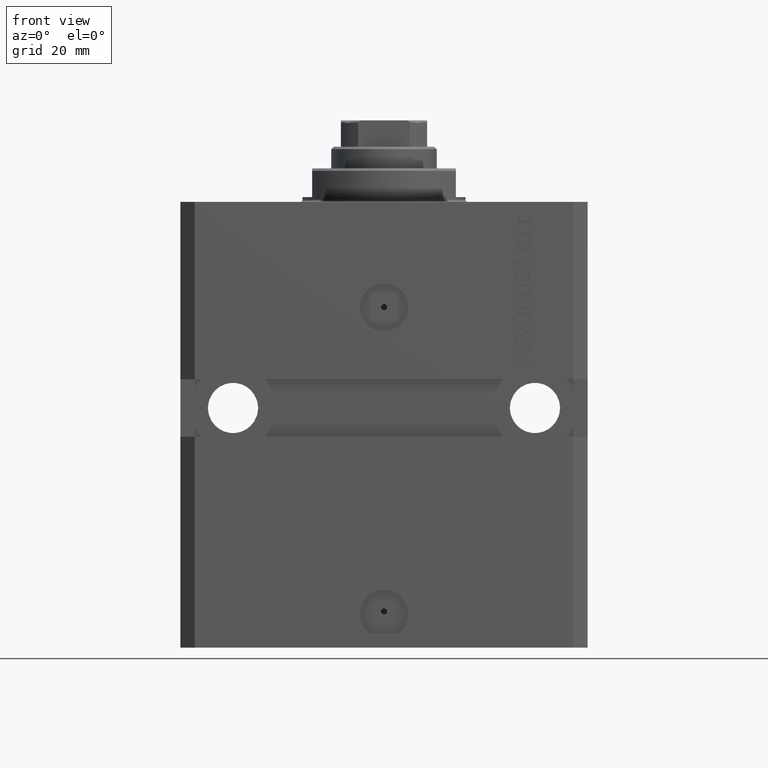
[diagram: clean part render]
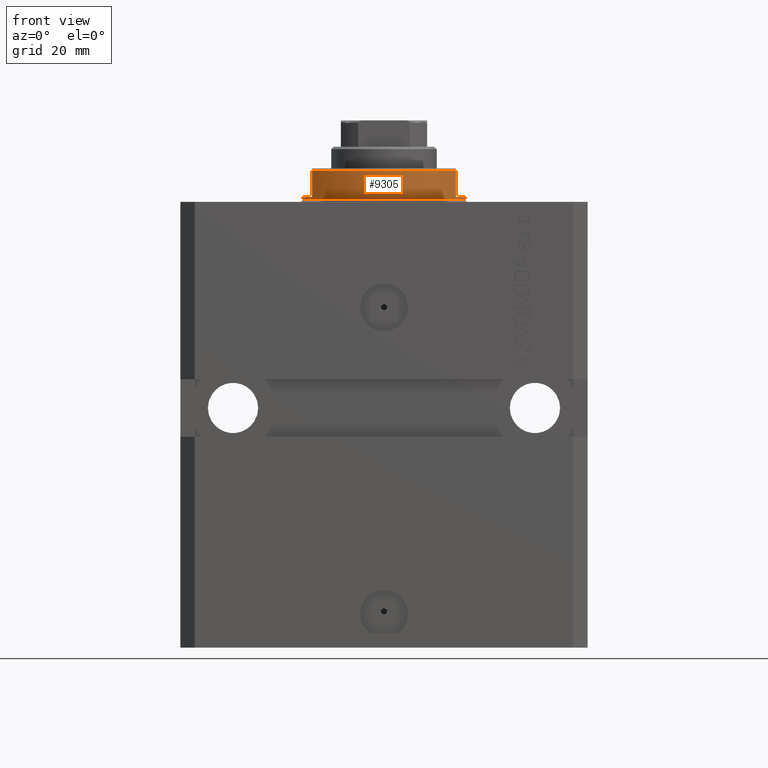
[diagram: same view with one face highlighted and labeled with its STEP entity id]
A machine part, front view. The second image highlights one B-rep face of the part: STEP entity #9305.
In plain terms, the highlighted cylindrical surface (partial cylindrical patch) has radius 17 mm, axis along (0, 0, -1).
Its self-contained STEP definition (entity closure, byte-faithful):
#736 = ORIENTED_EDGE ( 'NONE', *, *, #13265, .F. ) ;
#1543 = AXIS2_PLACEMENT_3D ( 'NONE', #9199, #40008, #32775 ) ;
#2666 = AXIS2_PLACEMENT_3D ( 'NONE', #10655, #24474, #24015 ) ;
#3872 = LINE ( 'NONE', #17471, #11610 ) ;
#4206 = CARTESIAN_POINT ( 'NONE',  ( 17.00000000000000000, 0.000000000000000000, -1.000000000000000000 ) ) ;
#4638 = DIRECTION ( 'NONE',  ( 0.000000000000000000, 0.000000000000000000, -1.000000000000000000 ) ) ;
#4930 = VERTEX_POINT ( 'NONE', #26469 ) ;
#5018 = EDGE_CURVE ( 'NONE', #11907, #6607, #15577, .T. ) ;
#6607 = VERTEX_POINT ( 'NONE', #19199 ) ;
#6978 = AXIS2_PLACEMENT_3D ( 'NONE', #20652, #14093, #34490 ) ;
#8997 = ORIENTED_EDGE ( 'NONE', *, *, #16278, .T. ) ;
#9199 = CARTESIAN_POINT ( 'NONE',  ( 0.000000000000000000, 0.000000000000000000, -6.500000000000013323 ) ) ;
#9305 = ADVANCED_FACE ( 'NONE', ( #23832 ), #23611, .T. ) ;
#10655 = CARTESIAN_POINT ( 'NONE',  ( 0.000000000000000000, 0.000000000000000000, -1.000000000000000000 ) ) ;
#10823 = EDGE_CURVE ( 'NONE', #22946, #25749, #29811, .T. ) ;
#11025 = CIRCLE ( 'NONE', #42143, 17.00000000000000000 ) ;
#11610 = VECTOR ( 'NONE', #27891, 1000.000000000000000 ) ;
#11707 = VECTOR ( 'NONE', #28037, 1000.000000000000000 ) ;
#11907 = VERTEX_POINT ( 'NONE', #4206 ) ;
#11924 = DIRECTION ( 'NONE',  ( 0.000000000000000000, 0.000000000000000000, -1.000000000000000000 ) ) ;
#12448 = ORIENTED_EDGE ( 'NONE', *, *, #22395, .T. ) ;
#13265 = EDGE_CURVE ( 'NONE', #6607, #4930, #3872, .T. ) ;
#13423 = EDGE_CURVE ( 'NONE', #29476, #36237, #14992, .T. ) ;
#14093 = DIRECTION ( 'NONE',  ( -0.000000000000000000, -0.000000000000000000, 1.000000000000000000 ) ) ;
#14992 = LINE ( 'NONE', #28793, #22438 ) ;
#15486 = EDGE_CURVE ( 'NONE', #25749, #4930, #18171, .T. ) ;
#15577 = CIRCLE ( 'NONE', #40143, 17.00000000000000000 ) ;
#16278 = EDGE_CURVE ( 'NONE', #11907, #17511, #31000, .T. ) ;
#17471 = CARTESIAN_POINT ( 'NONE',  ( 15.00000000000000000, -8.000000000000001776, -7.000000000000000000 ) ) ;
#17503 = ORIENTED_EDGE ( 'NONE', *, *, #10823, .T. ) ;
#17511 = VERTEX_POINT ( 'NONE', #35931 ) ;
#18171 = CIRCLE ( 'NONE', #1543, 17.00000000000000000 ) ;
#19199 = CARTESIAN_POINT ( 'NONE',  ( 14.99999999999999645, -8.000000000000003553, -1.000000000000000000 ) ) ;
#19331 = CIRCLE ( 'NONE', #2666, 17.00000000000000000 ) ;
#20652 = CARTESIAN_POINT ( 'NONE',  ( 0.000000000000000000, 0.000000000000000000, -7.000000000000000000 ) ) ;
#21366 = VECTOR ( 'NONE', #11924, 1000.000000000000000 ) ;
#22395 = EDGE_CURVE ( 'NONE', #17511, #36237, #11025, .T. ) ;
#22438 = VECTOR ( 'NONE', #42622, 1000.000000000000000 ) ;
#22946 = VERTEX_POINT ( 'NONE', #41324 ) ;
#23611 = CYLINDRICAL_SURFACE ( 'NONE', #6978, 17.00000000000000000 ) ;
#23832 = FACE_OUTER_BOUND ( 'NONE', #26086, .T. ) ;
#23868 = CARTESIAN_POINT ( 'NONE',  ( -17.00000000000000000, 2.081899558550500280E-15, -0.4999999999999995559 ) ) ;
#24015 = DIRECTION ( 'NONE',  ( -1.000000000000000000, 0.000000000000000000, 0.000000000000000000 ) ) ;
#24474 = DIRECTION ( 'NONE',  ( 0.000000000000000000, 0.000000000000000000, -1.000000000000000000 ) ) ;
#24632 = CARTESIAN_POINT ( 'NONE',  ( 17.00000000000000000, 0.000000000000000000, -7.000000000000000000 ) ) ;
#25577 = CARTESIAN_POINT ( 'NONE',  ( 0.000000000000000000, 0.000000000000000000, -0.4999999999999995559 ) ) ;
#25749 = VERTEX_POINT ( 'NONE', #31962 ) ;
#25811 = DIRECTION ( 'NONE',  ( 1.000000000000000000, 0.000000000000000000, 0.000000000000000000 ) ) ;
#26086 = EDGE_LOOP ( 'NONE', ( #42282, #30555, #17503, #28951, #736, #34950, #8997, #12448 ) ) ;
#26469 = CARTESIAN_POINT ( 'NONE',  ( 15.00000000000000000, -8.000000000000001776, -6.500000000000013323 ) ) ;
#27891 = DIRECTION ( 'NONE',  ( 0.000000000000000000, 0.000000000000000000, -1.000000000000000000 ) ) ;
#28037 = DIRECTION ( 'NONE',  ( -0.000000000000000000, -0.000000000000000000, 1.000000000000000000 ) ) ;
#28650 = CARTESIAN_POINT ( 'NONE',  ( 0.000000000000000000, 0.000000000000000000, -1.000000000000000000 ) ) ;
#28793 = CARTESIAN_POINT ( 'NONE',  ( -17.00000000000000000, 2.081899558550500280E-15, -7.000000000000000000 ) ) ;
#28951 = ORIENTED_EDGE ( 'NONE', *, *, #15486, .T. ) ;
#29476 = VERTEX_POINT ( 'NONE', #44780 ) ;
#29811 = LINE ( 'NONE', #36847, #21366 ) ;
#30555 = ORIENTED_EDGE ( 'NONE', *, *, #35006, .F. ) ;
#31000 = LINE ( 'NONE', #24632, #11707 ) ;
#31962 = CARTESIAN_POINT ( 'NONE',  ( -15.00000000000000000, -8.000000000000001776, -6.500000000000014211 ) ) ;
#32775 = DIRECTION ( 'NONE',  ( -1.000000000000000000, 0.000000000000000000, 0.000000000000000000 ) ) ;
#34490 = DIRECTION ( 'NONE',  ( 1.000000000000000000, 0.000000000000000000, 0.000000000000000000 ) ) ;
#34950 = ORIENTED_EDGE ( 'NONE', *, *, #5018, .F. ) ;
#35006 = EDGE_CURVE ( 'NONE', #22946, #29476, #19331, .T. ) ;
#35931 = CARTESIAN_POINT ( 'NONE',  ( 17.00000000000000000, 0.000000000000000000, -0.4999999999999995559 ) ) ;
#36237 = VERTEX_POINT ( 'NONE', #23868 ) ;
#36847 = CARTESIAN_POINT ( 'NONE',  ( -15.00000000000000000, -8.000000000000001776, -7.000000000000000000 ) ) ;
#40008 = DIRECTION ( 'NONE',  ( 0.000000000000000000, 0.000000000000000000, 1.000000000000000000 ) ) ;
#40143 = AXIS2_PLACEMENT_3D ( 'NONE', #28650, #4638, #42262 ) ;
#41324 = CARTESIAN_POINT ( 'NONE',  ( -14.99999999999999645, -8.000000000000003553, -1.000000000000000000 ) ) ;
#42143 = AXIS2_PLACEMENT_3D ( 'NONE', #25577, #42597, #25811 ) ;
#42262 = DIRECTION ( 'NONE',  ( -1.000000000000000000, 0.000000000000000000, 0.000000000000000000 ) ) ;
#42282 = ORIENTED_EDGE ( 'NONE', *, *, #13423, .F. ) ;
#42597 = DIRECTION ( 'NONE',  ( -0.000000000000000000, -0.000000000000000000, -1.000000000000000000 ) ) ;
#42622 = DIRECTION ( 'NONE',  ( -0.000000000000000000, -0.000000000000000000, 1.000000000000000000 ) ) ;
#44780 = CARTESIAN_POINT ( 'NONE',  ( -17.00000000000000000, 2.081899558550500280E-15, -1.000000000000000000 ) ) ;